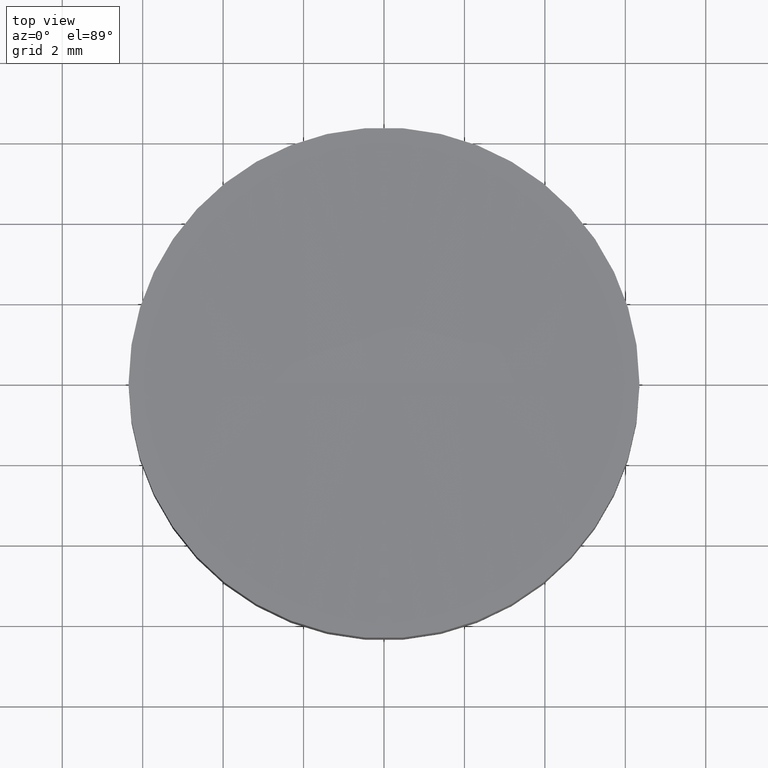
[diagram: clean part render]
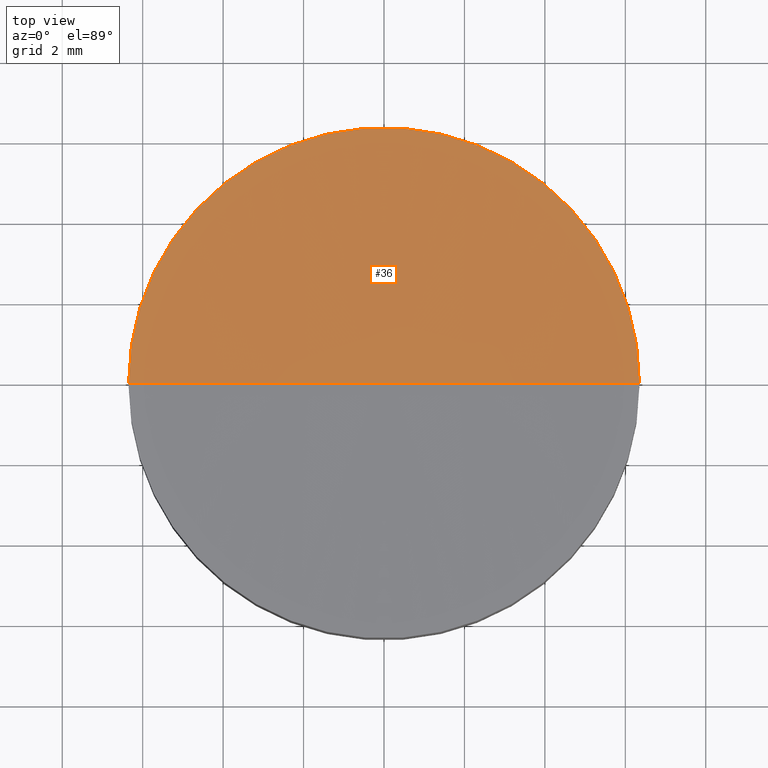
[diagram: same view with one face highlighted and labeled with its STEP entity id]
A machine part, top view. The second image highlights one B-rep face of the part: STEP entity #36.
In plain terms, the highlighted spherical surface has radius 1000 mm.
Its self-contained STEP definition (entity closure, byte-faithful):
#11 = ORIENTED_EDGE ( 'NONE', *, *, #200, .F. ) ;
#17 = EDGE_CURVE ( 'NONE', #45, #134, #49, .T. ) ;
#24 = CIRCLE ( 'NONE', #140, 1000.000000000000000 ) ;
#36 = ADVANCED_FACE ( 'NONE', ( #103 ), #137, .F. ) ;
#45 = VERTEX_POINT ( 'NONE', #119 ) ;
#49 = CIRCLE ( 'NONE', #65, 1000.000000000000227 ) ;
#51 = DIRECTION ( 'NONE',  ( 1.000000000000000000, 1.224646799147353207E-16, 0.000000000000000000 ) ) ;
#60 = DIRECTION ( 'NONE',  ( 1.000000000000000000, 0.000000000000000000, 0.000000000000000000 ) ) ;
#65 = AXIS2_PLACEMENT_3D ( 'NONE', #182, #72, #196 ) ;
#66 = CARTESIAN_POINT ( 'NONE',  ( 1.240327285323417073E-13, 0.000000000000000000, 3.000000000000002665 ) ) ;
#71 = VERTEX_POINT ( 'NONE', #184 ) ;
#72 = DIRECTION ( 'NONE',  ( 0.000000000000000000, 1.000000000000000000, -0.000000000000000000 ) ) ;
#73 = EDGE_LOOP ( 'NONE', ( #11, #75, #151 ) ) ;
#75 = ORIENTED_EDGE ( 'NONE', *, *, #194, .T. ) ;
#77 = DIRECTION ( 'NONE',  ( 1.224646799147353207E-16, -1.000000000000000000, 0.000000000000000000 ) ) ;
#78 = DIRECTION ( 'NONE',  ( -0.000000000000000000, -0.000000000000000000, -1.000000000000000000 ) ) ;
#87 = CARTESIAN_POINT ( 'NONE',  ( 1.240327285323417073E-13, 0.000000000000000000, 1002.979838546757833 ) ) ;
#96 = CARTESIAN_POINT ( 'NONE',  ( 1.852650684897093823E-13, 0.000000000000000000, 2.979838546757873630 ) ) ;
#103 = FACE_OUTER_BOUND ( 'NONE', #73, .T. ) ;
#108 = DIRECTION ( 'NONE',  ( 1.000000000000000000, 0.000000000000000000, 0.000000000000000000 ) ) ;
#119 = CARTESIAN_POINT ( 'NONE',  ( 6.350000000006298606, 7.776507174593406237E-16, 3.000000000000002665 ) ) ;
#121 = AXIS2_PLACEMENT_3D ( 'NONE', #66, #78, #108 ) ;
#134 = VERTEX_POINT ( 'NONE', #96 ) ;
#135 = DIRECTION ( 'NONE',  ( 0.000000000000000000, -1.000000000000000000, -0.000000000000000000 ) ) ;
#137 = SPHERICAL_SURFACE ( 'NONE', #180, 1000.000000000000000 ) ;
#140 = AXIS2_PLACEMENT_3D ( 'NONE', #161, #77, #51 ) ;
#151 = ORIENTED_EDGE ( 'NONE', *, *, #17, .F. ) ;
#161 = CARTESIAN_POINT ( 'NONE',  ( 1.240327285323417073E-13, 0.000000000000000000, 1002.979838546757833 ) ) ;
#180 = AXIS2_PLACEMENT_3D ( 'NONE', #87, #135, #60 ) ;
#182 = CARTESIAN_POINT ( 'NONE',  ( 1.240327285323417073E-13, 0.000000000000000000, 1002.979838546757833 ) ) ;
#184 = CARTESIAN_POINT ( 'NONE',  ( -6.350000000006049916, 0.000000000000000000, 3.000000000000002665 ) ) ;
#194 = EDGE_CURVE ( 'NONE', #71, #134, #24, .T. ) ;
#196 = DIRECTION ( 'NONE',  ( 0.000000000000000000, 0.000000000000000000, 1.000000000000000000 ) ) ;
#198 = CIRCLE ( 'NONE', #121, 6.350000000006174261 ) ;
#200 = EDGE_CURVE ( 'NONE', #71, #45, #198, .T. ) ;